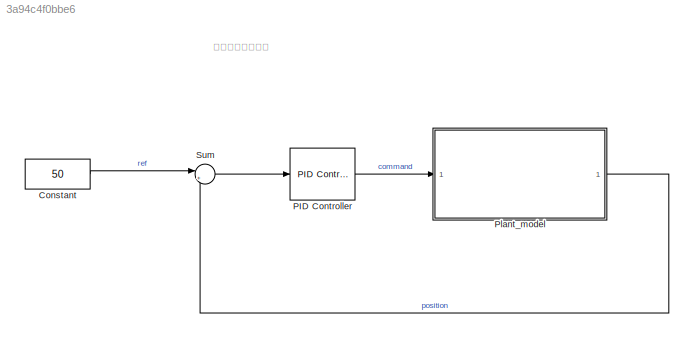
MODEL slx_3a94c4f0bbe6
KIND model
CONFIG AbsTol = auto
CONFIG EnableMultiTasking = off
CONFIG FixedStep = auto
CONFIG MaxStep = auto
CONFIG MinStep = auto
CONFIG RelTol = 1e-3
CONFIG SampleTimeConstraint = Unconstrained
CONFIG SolverName = VariableStepAuto
CONFIG StartTime = 0.0
CONFIG StopTime = 30
BLOCK [Constant] Constant
  Value = 50
BLOCK [Reference] PID Controller  REF=slpidlib/PID Controller
  SourceBlock = slpidlib/PID Controller
  SourceType = PID 1dof
BLOCK [SubSystem] Plant_model
  ReferencedSubsystem = UHG_UAV_plant_model_noise
BLOCK [Sum] Sum
  Inputs = |+-
ANNOTATION (root): 比例積分微分制御
LINE Constant:1 -> Sum:1
LINE PID Controller:1 -> Plant_model:1
LINE Plant_model:1 -> Sum:2
LINE Sum:1 -> PID Controller:1
